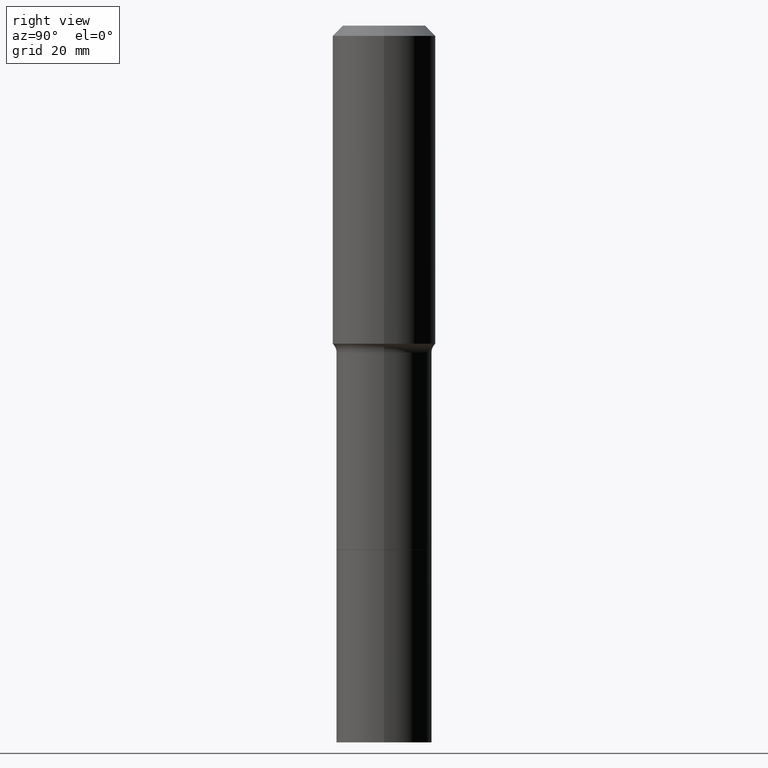
[diagram: clean part render]
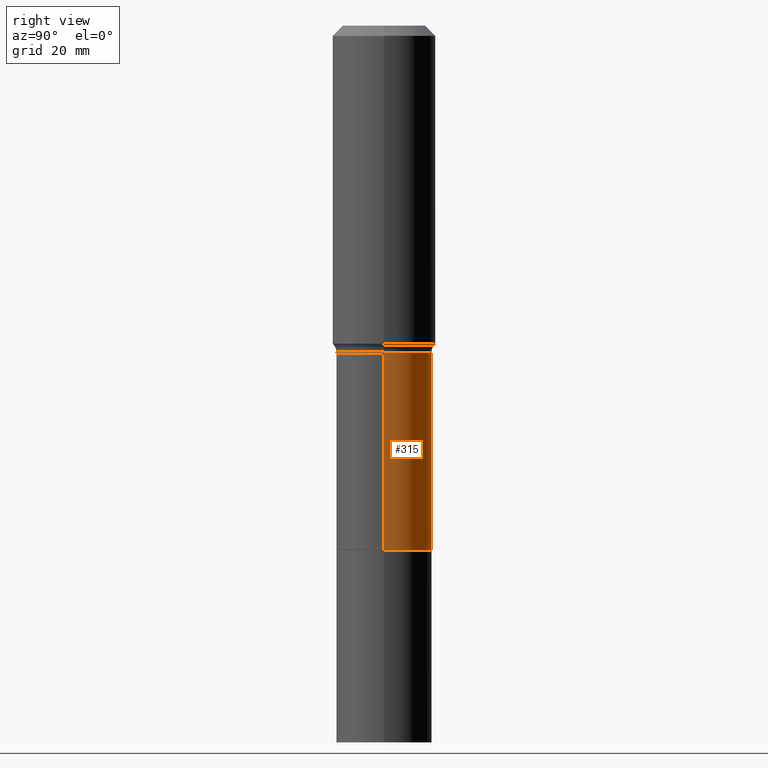
[diagram: same view with one face highlighted and labeled with its STEP entity id]
A machine part, right view. The second image highlights one B-rep face of the part: STEP entity #315.
In plain terms, the highlighted cylindrical surface (partial cylindrical patch) has radius 8.3337 mm, axis along (-0, 0, 1).
Its self-contained STEP definition (entity closure, byte-faithful):
#21 = CARTESIAN_POINT ( 'NONE',  ( 8.803198608505253731E-29, -1.256863452356755408E-14, -3.599799999999999667 ) ) ;
#22 = ORIENTED_EDGE ( 'NONE', *, *, #358, .T. ) ;
#23 = CARTESIAN_POINT ( 'NONE',  ( -0.3280999999999998917, 2.331290716028887941E-15, -1.613902603112634153E-29 ) ) ;
#44 = VERTEX_POINT ( 'NONE', #501 ) ;
#55 = EDGE_LOOP ( 'NONE', ( #22, #376, #335, #518 ) ) ;
#76 = VECTOR ( 'NONE', #299, 39.37007874015748143 ) ;
#99 = CARTESIAN_POINT ( 'NONE',  ( -0.3280999999999998362, -7.870992330137724174E-15, -2.244299999999999962 ) ) ;
#131 = CARTESIAN_POINT ( 'NONE',  ( 0.000000000000000000, 0.000000000000000000, 0.000000000000000000 ) ) ;
#144 = AXIS2_PLACEMENT_3D ( 'NONE', #21, #182, #357 ) ;
#182 = DIRECTION ( 'NONE',  ( -2.445468806185136597E-29, 3.491481338843145583E-15, 1.000000000000000000 ) ) ;
#189 = CYLINDRICAL_SURFACE ( 'NONE', #401, 0.3280999999999998917 ) ;
#191 = DIRECTION ( 'NONE',  ( -2.445468806185136597E-29, 3.491481338843145583E-15, 1.000000000000000000 ) ) ;
#195 = CIRCLE ( 'NONE', #484, 0.3280999999999998362 ) ;
#216 = EDGE_CURVE ( 'NONE', #412, #297, #195, .T. ) ;
#217 = DIRECTION ( 'NONE',  ( -2.445468806185136597E-29, 3.491481338843145583E-15, 1.000000000000000000 ) ) ;
#232 = FACE_OUTER_BOUND ( 'NONE', #55, .T. ) ;
#257 = EDGE_CURVE ( 'NONE', #44, #412, #388, .T. ) ;
#258 = DIRECTION ( 'NONE',  ( -2.445468806185136877E-29, 3.491481338843145188E-15, 1.000000000000000000 ) ) ;
#263 = CARTESIAN_POINT ( 'NONE',  ( 0.3280999999999998917, -2.291110054548863720E-15, 1.599873600138646028E-29 ) ) ;
#265 = VECTOR ( 'NONE', #258, 39.37007874015748143 ) ;
#268 = DIRECTION ( 'NONE',  ( 1.000000000000000000, -6.982962677686267499E-15, 4.876176775795935793E-29 ) ) ;
#297 = VERTEX_POINT ( 'NONE', #99 ) ;
#299 = DIRECTION ( 'NONE',  ( -2.445468806185136877E-29, 3.491481338843145188E-15, 1.000000000000000000 ) ) ;
#315 = ADVANCED_FACE ( 'NONE', ( #232 ), #189, .T. ) ;
#335 = ORIENTED_EDGE ( 'NONE', *, *, #216, .F. ) ;
#342 = CARTESIAN_POINT ( 'NONE',  ( -0.3281000000000000028, -7.870992330137724174E-15, -3.599799999999999667 ) ) ;
#357 = DIRECTION ( 'NONE',  ( 1.000000000000000000, -6.982962677686270655E-15, 0.000000000000000000 ) ) ;
#358 = EDGE_CURVE ( 'NONE', #44, #384, #488, .T. ) ;
#376 = ORIENTED_EDGE ( 'NONE', *, *, #511, .T. ) ;
#384 = VERTEX_POINT ( 'NONE', #342 ) ;
#388 = LINE ( 'NONE', #263, #265 ) ;
#391 = CARTESIAN_POINT ( 'NONE',  ( 5.488365641721302321E-29, -7.835931568765670941E-15, -2.244299999999999962 ) ) ;
#401 = AXIS2_PLACEMENT_3D ( 'NONE', #131, #217, #268 ) ;
#412 = VERTEX_POINT ( 'NONE', #497 ) ;
#484 = AXIS2_PLACEMENT_3D ( 'NONE', #391, #191, #510 ) ;
#488 = CIRCLE ( 'NONE', #144, 0.3281000000000000028 ) ;
#493 = LINE ( 'NONE', #23, #76 ) ;
#497 = CARTESIAN_POINT ( 'NONE',  ( 0.3280999999999998362, -1.012704162331453269E-14, -2.244299999999999962 ) ) ;
#501 = CARTESIAN_POINT ( 'NONE',  ( 0.3281000000000000028, -1.485974457811641898E-14, -3.599799999999999667 ) ) ;
#510 = DIRECTION ( 'NONE',  ( 1.000000000000000000, -6.982962677686264344E-15, 0.000000000000000000 ) ) ;
#511 = EDGE_CURVE ( 'NONE', #384, #297, #493, .T. ) ;
#518 = ORIENTED_EDGE ( 'NONE', *, *, #257, .F. ) ;